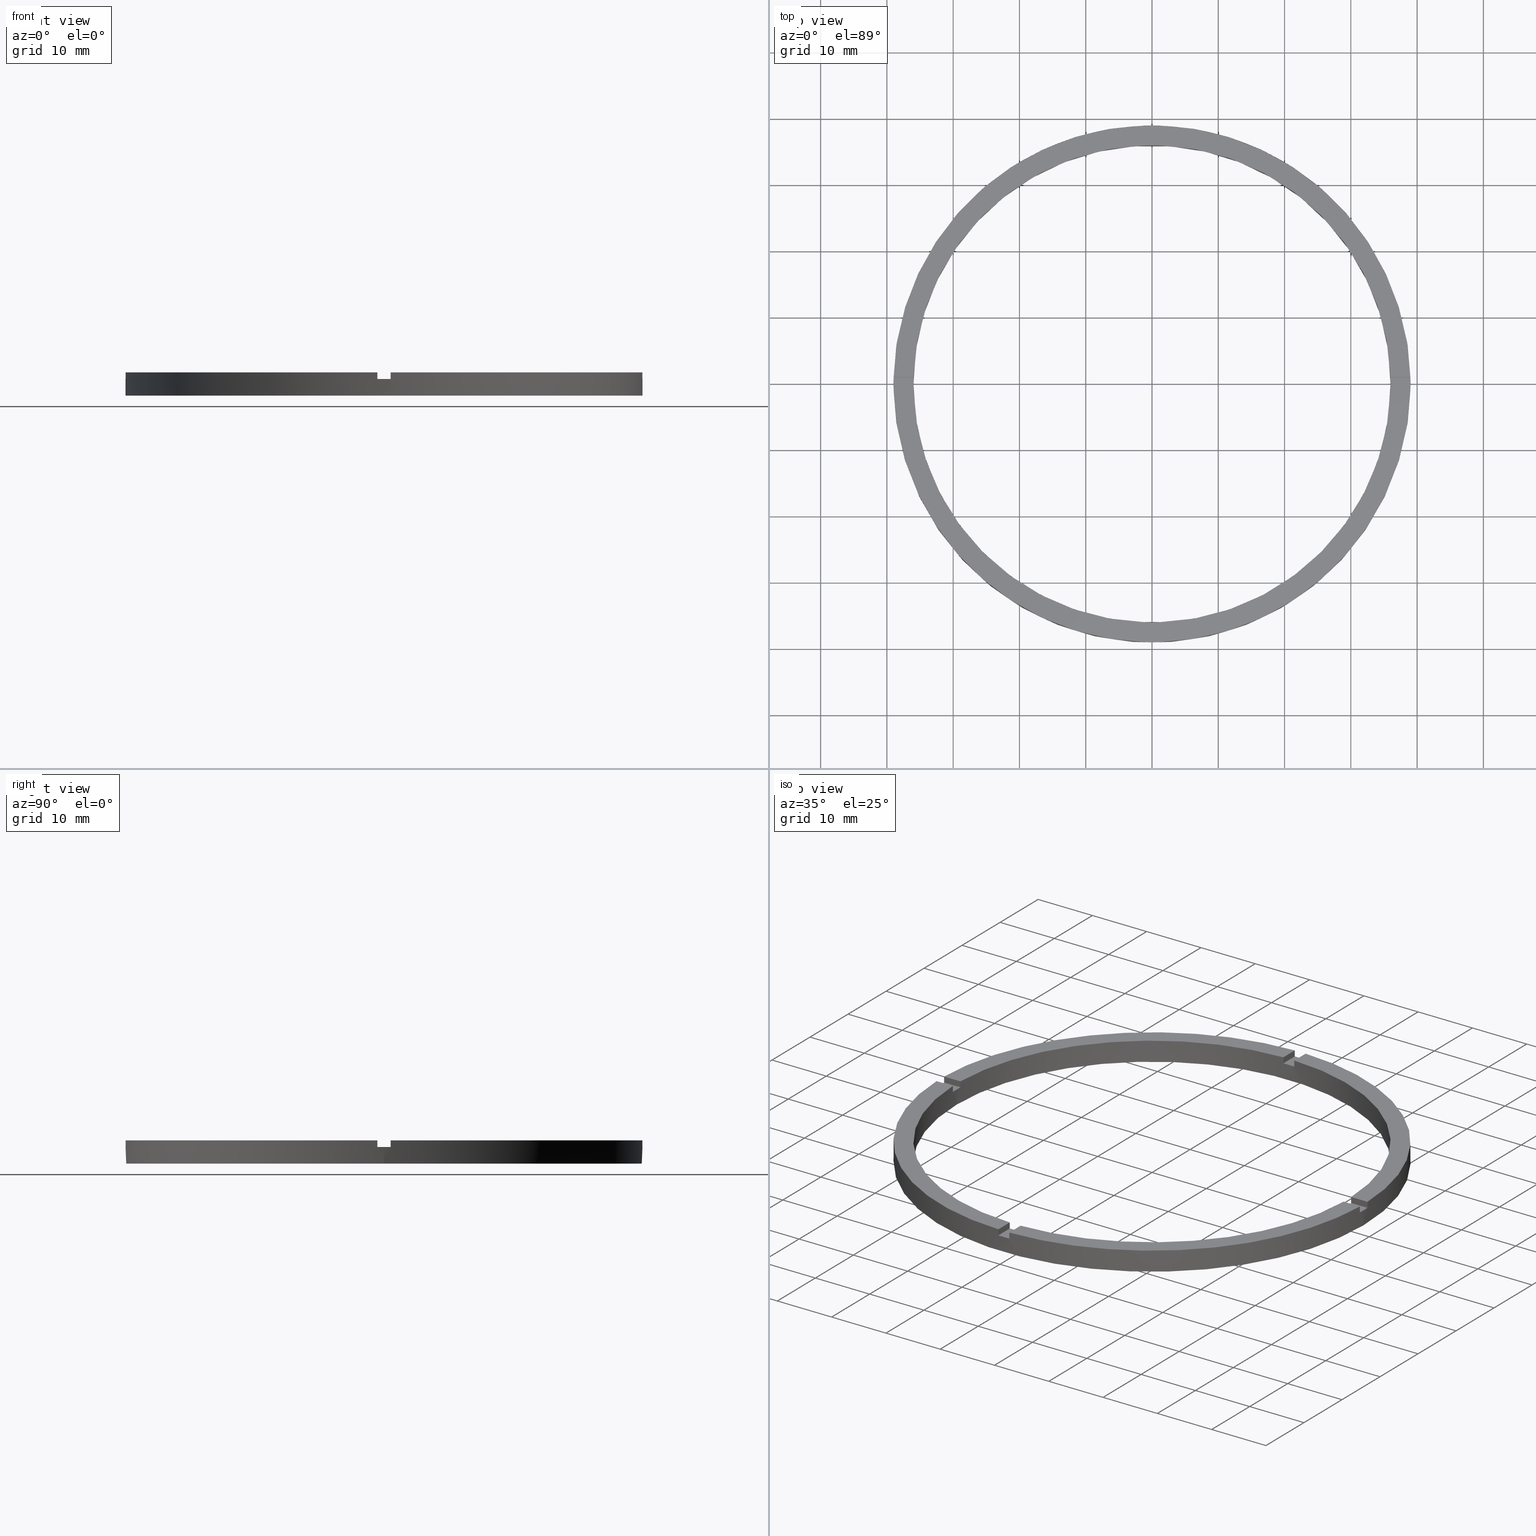
[diagram: canonical four-view strip — front | top / right | iso, engineering-drawing reading convention]
A machine part, canonical four-view strip (front | top / right | iso — engineering-drawing reading convention). The complete STEP part file that produces these views, byte-faithful:
ISO-10303-21;
HEADER;
FILE_DESCRIPTION (( 'STEP AP203' ),
    '1' );
FILE_NAME ('514161.step',
    '2024-12-26T02:43:27',
    ( 'MSI' ),
    ( '' ),
    'SwSTEP 2.0',
    'SolidWorks 2020',
    '' );
FILE_SCHEMA (( 'CONFIG_CONTROL_DESIGN' ));
ENDSEC;

DATA;
#1 = AXIS2_PLACEMENT_3D ( 'NONE', #303, #6, #317 ) ;
#2 = DIRECTION ( 'NONE',  ( 1.000000000000000000, 0.000000000000000000, 0.000000000000000000 ) ) ;
#3 = DIRECTION ( 'NONE',  ( 0.000000000000000000, 0.000000000000000000, 1.000000000000000000 ) ) ;
#4 = CARTESIAN_POINT ( 'NONE',  ( -38.98717737923585247, -1.000000000000027978, 2.500000000000000000 ) ) ;
#5 = CARTESIAN_POINT ( 'NONE',  ( 28.99999999999998934, 0.9999999999998421263, 3.500000000000000000 ) ) ;
#6 = DIRECTION ( 'NONE',  ( -0.000000000000000000, -0.000000000000000000, -1.000000000000000000 ) ) ;
#7 = PLANE ( 'NONE',  #627 ) ;
#8 = DIRECTION ( 'NONE',  ( -1.000000000000000000, -6.505213034913025371E-17, 0.000000000000000000 ) ) ;
#9 = APPLICATION_PROTOCOL_DEFINITION ( 'international standard', 'config_control_design', 1994, #273 ) ;
#10 = CC_DESIGN_DATE_AND_TIME_ASSIGNMENT ( #101, #692, ( #119 ) ) ;
#11 = CIRCLE ( 'NONE', #435, 36.00000000000000000 ) ;
#12 = FACE_OUTER_BOUND ( 'NONE', #763, .T. ) ;
#13 = EDGE_CURVE ( 'NONE', #468, #205, #132, .T. ) ;
#14 = DIRECTION ( 'NONE',  ( -0.000000000000000000, -1.000000000000000000, -0.000000000000000000 ) ) ;
#15 = FACE_OUTER_BOUND ( 'NONE', #746, .T. ) ;
#16 = DIRECTION ( 'NONE',  ( 1.000000000000000000, 0.000000000000000000, 0.000000000000000000 ) ) ;
#17 = AXIS2_PLACEMENT_3D ( 'NONE', #700, #654, #545 ) ;
#18 = CARTESIAN_POINT ( 'NONE',  ( 39.00000000000000000, 4.776122516674677878E-15, 3.500000000000000000 ) ) ;
#19 = CARTESIAN_POINT ( 'NONE',  ( 0.000000000000000000, 0.000000000000000000, 3.500000000000000000 ) ) ;
#20 = ADVANCED_FACE ( 'NONE', ( #669 ), #50, .F. ) ;
#21 = PLANE ( 'NONE',  #434 ) ;
#22 = DIRECTION ( 'NONE',  ( 0.000000000000000000, 0.000000000000000000, 1.000000000000000000 ) ) ;
#23 = PERSON_AND_ORGANIZATION_ROLE ( 'classification_officer' ) ;
#24 = AXIS2_PLACEMENT_3D ( 'NONE', #632, #748, #532 ) ;
#25 = AXIS2_PLACEMENT_3D ( 'NONE', #282, #596, #29 ) ;
#26 = EDGE_CURVE ( 'NONE', #732, #718, #661, .T. ) ;
#27 = VECTOR ( 'NONE', #386, 1000.000000000000000 ) ;
#28 = CARTESIAN_POINT ( 'NONE',  ( -39.00000000000000000, 0.000000000000000000, 2.500000000000000000 ) ) ;
#29 = DIRECTION ( 'NONE',  ( 1.000000000000000000, 0.000000000000000000, 0.000000000000000000 ) ) ;
#30 = FACE_BOUND ( 'NONE', #495, .T. ) ;
#31 = DIRECTION ( 'NONE',  ( -0.000000000000000000, -0.000000000000000000, -1.000000000000000000 ) ) ;
#32 = CARTESIAN_POINT ( 'NONE',  ( 35.98610843089315381, -1.000000000000157430, 3.500000000000000000 ) ) ;
#33 = EDGE_CURVE ( 'NONE', #519, #234, #670, .T. ) ;
#34 = LINE ( 'NONE', #780, #27 ) ;
#35 = CARTESIAN_POINT ( 'NONE',  ( 0.9999999999999746869, 38.98717737923585247, 3.500000000000000000 ) ) ;
#36 = PLANE ( 'NONE',  #761 ) ;
#37 = CARTESIAN_POINT ( 'NONE',  ( 0.9999999999998406830, -38.98717737923585958, 3.500000000000000000 ) ) ;
#38 = CIRCLE ( 'NONE', #147, 39.00000000000000000 ) ;
#39 = DIRECTION ( 'NONE',  ( -0.000000000000000000, 0.000000000000000000, 1.000000000000000000 ) ) ;
#40 = UNCERTAINTY_MEASURE_WITH_UNIT (LENGTH_MEASURE( 1.000000000000000082E-05 ), #331, 'distance_accuracy_value', 'NONE');
#41 = CARTESIAN_POINT ( 'NONE',  ( 0.9999999999998404610, -35.98610843089316091, 2.500000000000000000 ) ) ;
#42 = CARTESIAN_POINT ( 'NONE',  ( -1.000000000000159428, -38.98717737923584536, 2.500000000000000000 ) ) ;
#43 = VECTOR ( 'NONE', #160, 1000.000000000000000 ) ;
#44 = VECTOR ( 'NONE', #3, 1000.000000000000000 ) ;
#45 = MECHANICAL_CONTEXT ( 'NONE', #725, 'mechanical' ) ;
#46 = VECTOR ( 'NONE', #14, 1000.000000000000000 ) ;
#47 = ADVANCED_FACE ( 'NONE', ( #415 ), #655, .F. ) ;
#48 = CARTESIAN_POINT ( 'NONE',  ( 0.9999999999998393507, -29.00000000000017764, 2.500000000000000000 ) ) ;
#49 = CARTESIAN_POINT ( 'NONE',  ( 0.000000000000000000, 0.000000000000000000, 3.500000000000000000 ) ) ;
#50 = PLANE ( 'NONE',  #575 ) ;
#51 = LINE ( 'NONE', #540, #585 ) ;
#52 = VECTOR ( 'NONE', #31, 1000.000000000000000 ) ;
#53 = DIRECTION ( 'NONE',  ( 0.000000000000000000, 0.000000000000000000, 1.000000000000000000 ) ) ;
#54 = AXIS2_PLACEMENT_3D ( 'NONE', #476, #167, #429 ) ;
#55 = FACE_OUTER_BOUND ( 'NONE', #710, .T. ) ;
#56 = FACE_OUTER_BOUND ( 'NONE', #735, .T. ) ;
#57 = LINE ( 'NONE', #18, #363 ) ;
#58 = CIRCLE ( 'NONE', #71, 36.00000000000000000 ) ;
#59 = CARTESIAN_POINT ( 'NONE',  ( 0.000000000000000000, 0.000000000000000000, 0.000000000000000000 ) ) ;
#60 = CARTESIAN_POINT ( 'NONE',  ( -29.00000000000018474, 0.9999999999999740208, 2.500000000000000000 ) ) ;
#61 = CIRCLE ( 'NONE', #534, 39.00000000000000000 ) ;
#62 = VECTOR ( 'NONE', #583, 1000.000000000000000 ) ;
#63 = VECTOR ( 'NONE', #374, 1000.000000000000000 ) ;
#64 = CYLINDRICAL_SURFACE ( 'NONE', #392, 39.00000000000000000 ) ;
#65 = CIRCLE ( 'NONE', #653, 39.00000000000000000 ) ;
#66 = CARTESIAN_POINT ( 'NONE',  ( 35.98610843089316091, 0.9999999999998425704, 2.500000000000000000 ) ) ;
#67 = FACE_OUTER_BOUND ( 'NONE', #496, .T. ) ;
#68 = DIRECTION ( 'NONE',  ( -1.951563910473907735E-16, 1.000000000000000000, 0.000000000000000000 ) ) ;
#69 = LINE ( 'NONE', #595, #85 ) ;
#70 = LINE ( 'NONE', #37, #599 ) ;
#71 = AXIS2_PLACEMENT_3D ( 'NONE', #158, #461, #400 ) ;
#72 = DIRECTION ( 'NONE',  ( 0.000000000000000000, 0.000000000000000000, 1.000000000000000000 ) ) ;
#73 = PRODUCT_DEFINITION_SHAPE ( 'NONE', 'NONE',  #119 ) ;
#74 = ADVANCED_FACE ( 'NONE', ( #137 ), #7, .F. ) ;
#75 = VECTOR ( 'NONE', #668, 1000.000000000000000 ) ;
#76 = CALENDAR_DATE ( 2024, 26, 12 ) ;
#77 = CIRCLE ( 'NONE', #367, 39.00000000000000000 ) ;
#78 = VECTOR ( 'NONE', #322, 1000.000000000000000 ) ;
#79 = CARTESIAN_POINT ( 'NONE',  ( -39.00000000000000000, 0.000000000000000000, 3.500000000000000000 ) ) ;
#80 = AXIS2_PLACEMENT_3D ( 'NONE', #626, #675, #270 ) ;
#81 = VECTOR ( 'NONE', #431, 1000.000000000000000 ) ;
#82 = EDGE_CURVE ( 'NONE', #749, #231, #412, .T. ) ;
#83 = LINE ( 'NONE', #709, #62 ) ;
#84 = PERSON_AND_ORGANIZATION ( #189, #621 ) ;
#85 = VECTOR ( 'NONE', #770, 1000.000000000000000 ) ;
#86 = LINE ( 'NONE', #611, #335 ) ;
#87 = VECTOR ( 'NONE', #549, 1000.000000000000000 ) ;
#88 = PERSON_AND_ORGANIZATION ( #189, #621 ) ;
#89 = LINE ( 'NONE', #472, #97 ) ;
#90 = PERSON_AND_ORGANIZATION ( #189, #621 ) ;
#91 = PLANE ( 'NONE',  #296 ) ;
#92 = VECTOR ( 'NONE', #383, 1000.000000000000000 ) ;
#93 = COORDINATED_UNIVERSAL_TIME_OFFSET ( 8, 0, .AHEAD. ) ;
#94 = APPROVAL ( #108, 'δָ��' ) ;
#95 = LINE ( 'NONE', #172, #92 ) ;
#96 = LINE ( 'NONE', #257, #81 ) ;
#97 = VECTOR ( 'NONE', #650, 1000.000000000000000 ) ;
#98 = DIRECTION ( 'NONE',  ( 0.000000000000000000, 0.000000000000000000, 1.000000000000000000 ) ) ;
#99 = EDGE_CURVE ( 'NONE', #507, #241, #141, .T. ) ;
#100 = ADVANCED_FACE ( 'NONE', ( #155 ), #297, .T. ) ;
#101 = DATE_AND_TIME ( #623, #618 ) ;
#102 = DIRECTION ( 'NONE',  ( 0.000000000000000000, 0.000000000000000000, 1.000000000000000000 ) ) ;
#103 = CALENDAR_DATE ( 2024, 26, 12 ) ;
#104 = CARTESIAN_POINT ( 'NONE',  ( 0.000000000000000000, 0.000000000000000000, 2.500000000000000000 ) ) ;
#105 = DIRECTION ( 'NONE',  ( 1.000000000000000000, 0.000000000000000000, 0.000000000000000000 ) ) ;
#106 = ORIENTED_EDGE ( 'NONE', *, *, #687, .F. ) ;
#107 = DIRECTION ( 'NONE',  ( 1.000000000000000000, 0.000000000000000000, 0.000000000000000000 ) ) ;
#108 = APPROVAL_STATUS ( 'not_yet_approved' ) ;
#109 = EDGE_LOOP ( 'NONE', ( #170, #390, #522, #648 ) ) ;
#110 = DIRECTION ( 'NONE',  ( 0.000000000000000000, 0.000000000000000000, 1.000000000000000000 ) ) ;
#111 = AXIS2_PLACEMENT_3D ( 'NONE', #601, #783, #411 ) ;
#112 = CARTESIAN_POINT ( 'NONE',  ( -1.000000000000025313, 38.98717737923585247, 2.500000000000000000 ) ) ;
#113 = ORIENTED_EDGE ( 'NONE', *, *, #251, .T. ) ;
#114 = CIRCLE ( 'NONE', #24, 39.00000000000000000 ) ;
#115 = AXIS2_PLACEMENT_3D ( 'NONE', #192, #625, #436 ) ;
#116 = VERTEX_POINT ( 'NONE', #550 ) ;
#117 = DIRECTION ( 'NONE',  ( 0.000000000000000000, 0.000000000000000000, 1.000000000000000000 ) ) ;
#118 = EDGE_LOOP ( 'NONE', ( #744, #173, #647, #652 ) ) ;
#119 = PRODUCT_DEFINITION ( 'δ֪', '', #455, #321 ) ;
#120 = EDGE_LOOP ( 'NONE', ( #402, #150, #232, #135 ) ) ;
#121 = DIRECTION ( 'NONE',  ( -1.301042606982605074E-16, 1.000000000000000000, -0.000000000000000000 ) ) ;
#122 = EDGE_CURVE ( 'NONE', #644, #485, #163, .T. ) ;
#123 = DIRECTION ( 'NONE',  ( 1.000000000000000000, 0.000000000000000000, -0.000000000000000000 ) ) ;
#124 = ORIENTED_EDGE ( 'NONE', *, *, #251, .F. ) ;
#125 = CARTESIAN_POINT ( 'NONE',  ( 0.9999999999999746869, 35.98610843089316091, 3.500000000000000000 ) ) ;
#126 = EDGE_CURVE ( 'NONE', #519, #705, #159, .T. ) ;
#127 = DIRECTION ( 'NONE',  ( 0.000000000000000000, 0.000000000000000000, 1.000000000000000000 ) ) ;
#128 = CARTESIAN_POINT ( 'NONE',  ( -1.000000000000025313, 28.99999999999999645, 2.500000000000000000 ) ) ;
#129 = CARTESIAN_POINT ( 'NONE',  ( 36.00000000000000000, 4.408728476930470856E-15, 0.000000000000000000 ) ) ;
#130 = CC_DESIGN_APPROVAL ( #302, ( #119 ) ) ;
#131 = CARTESIAN_POINT ( 'NONE',  ( 28.99999999999998934, -1.000000000000157874, 2.500000000000000000 ) ) ;
#132 = LINE ( 'NONE', #729, #418 ) ;
#133 = EDGE_CURVE ( 'NONE', #773, #403, #427, .T. ) ;
#134 = EDGE_CURVE ( 'NONE', #466, #469, #677, .T. ) ;
#135 = ORIENTED_EDGE ( 'NONE', *, *, #513, .T. ) ;
#136 = EDGE_LOOP ( 'NONE', ( #754, #199, #228, #502 ) ) ;
#137 = FACE_OUTER_BOUND ( 'NONE', #733, .T. ) ;
#138 = PERSON_AND_ORGANIZATION_ROLE ( 'design_owner' ) ;
#139 = VECTOR ( 'NONE', #213, 1000.000000000000000 ) ;
#140 = CARTESIAN_POINT ( 'NONE',  ( 28.99999999999998934, -1.000000000000157874, 3.500000000000000000 ) ) ;
#141 = CIRCLE ( 'NONE', #25, 39.00000000000000000 ) ;
#142 = DIRECTION ( 'NONE',  ( 1.000000000000000000, 0.000000000000000000, 0.000000000000000000 ) ) ;
#143 = CARTESIAN_POINT ( 'NONE',  ( -1.000000000000159650, -35.98610843089315381, 2.500000000000000000 ) ) ;
#144 = CARTESIAN_POINT ( 'NONE',  ( 0.000000000000000000, 0.000000000000000000, 2.500000000000000000 ) ) ;
#145 = CC_DESIGN_APPROVAL ( #94, ( #204 ) ) ;
#146 = ORIENTED_EDGE ( 'NONE', *, *, #734, .T. ) ;
#147 = AXIS2_PLACEMENT_3D ( 'NONE', #441, #404, #142 ) ;
#148 = DIRECTION ( 'NONE',  ( 0.000000000000000000, 0.000000000000000000, -1.000000000000000000 ) ) ;
#149 = EDGE_CURVE ( 'NONE', #633, #250, #83, .T. ) ;
#150 = ORIENTED_EDGE ( 'NONE', *, *, #359, .T. ) ;
#151 = ADVANCED_FACE ( 'NONE', ( #67 ), #641, .T. ) ;
#152 =( NAMED_UNIT ( * ) PLANE_ANGLE_UNIT ( ) SI_UNIT ( $, .RADIAN. ) );
#153 = VECTOR ( 'NONE', #207, 1000.000000000000000 ) ;
#154 = DIRECTION ( 'NONE',  ( 0.000000000000000000, 0.000000000000000000, 1.000000000000000000 ) ) ;
#155 = FACE_OUTER_BOUND ( 'NONE', #634, .T. ) ;
#156 = ADVANCED_FACE ( 'NONE', ( #340 ), #64, .T. ) ;
#157 = DIRECTION ( 'NONE',  ( 0.000000000000000000, -0.000000000000000000, 1.000000000000000000 ) ) ;
#158 = CARTESIAN_POINT ( 'NONE',  ( 0.000000000000000000, 0.000000000000000000, 3.500000000000000000 ) ) ;
#159 = LINE ( 'NONE', #488, #153 ) ;
#160 = DIRECTION ( 'NONE',  ( 0.000000000000000000, 0.000000000000000000, 1.000000000000000000 ) ) ;
#161 = PERSON_AND_ORGANIZATION_ROLE ( 'creator' ) ;
#162 = CC_DESIGN_PERSON_AND_ORGANIZATION_ASSIGNMENT ( #174, #544, ( #455 ) ) ;
#163 = CIRCLE ( 'NONE', #688, 36.00000000000000000 ) ;
#164 = EDGE_CURVE ( 'NONE', #768, #485, #342, .T. ) ;
#165 = CARTESIAN_POINT ( 'NONE',  ( -1.000000000000025313, 38.98717737923585247, 3.500000000000000000 ) ) ;
#166 = AXIS2_PLACEMENT_3D ( 'NONE', #613, #127, #512 ) ;
#167 = DIRECTION ( 'NONE',  ( 0.000000000000000000, 0.000000000000000000, 1.000000000000000000 ) ) ;
#168 = DIRECTION ( 'NONE',  ( 0.000000000000000000, 0.000000000000000000, 1.000000000000000000 ) ) ;
#169 = COORDINATED_UNIVERSAL_TIME_OFFSET ( 8, 0, .AHEAD. ) ;
#170 = ORIENTED_EDGE ( 'NONE', *, *, #134, .F. ) ;
#171 = PERSON_AND_ORGANIZATION ( #189, #621 ) ;
#172 = CARTESIAN_POINT ( 'NONE',  ( -29.00000000000018474, -1.000000000000025979, 3.500000000000000000 ) ) ;
#173 = ORIENTED_EDGE ( 'NONE', *, *, #126, .T. ) ;
#174 = PERSON_AND_ORGANIZATION ( #189, #621 ) ;
#175 = CARTESIAN_POINT ( 'NONE',  ( 38.98717737923584536, -1.000000000000157208, 3.500000000000000000 ) ) ;
#176 = VERTEX_POINT ( 'NONE', #406 ) ;
#177 = LOCAL_TIME ( 10, 43, 27.00000000000000000, #447 ) ;
#178 = AXIS2_PLACEMENT_3D ( 'NONE', #755, #397, #16 ) ;
#179 = EDGE_CURVE ( 'NONE', #214, #533, #350, .T. ) ;
#180 = ORIENTED_EDGE ( 'NONE', *, *, #635, .T. ) ;
#181 = APPROVAL_DATE_TIME ( #699, #509 ) ;
#182 = ORIENTED_EDGE ( 'NONE', *, *, #445, .F. ) ;
#183 = PERSON_AND_ORGANIZATION ( #189, #621 ) ;
#184 = DIRECTION ( 'NONE',  ( 0.000000000000000000, 0.000000000000000000, 1.000000000000000000 ) ) ;
#185 = CARTESIAN_POINT ( 'NONE',  ( 0.000000000000000000, 0.000000000000000000, 2.500000000000000000 ) ) ;
#186 = ORIENTED_EDGE ( 'NONE', *, *, #122, .T. ) ;
#187 = CLOSED_SHELL ( 'NONE', ( #47, #407, #100, #645, #395, #470, #324, #156, #271, #285, #74, #281, #751, #685, #681, #438, #20, #151, #343, #730, #630 ) ) ;
#188 = ORIENTED_EDGE ( 'NONE', *, *, #237, .F. ) ;
#189 = PERSON ( 'δָ��', 'δָ��', 'δָ��', ('δָ��'), ('δָ��'), ('δָ��') ) ;
#190 = AXIS2_PLACEMENT_3D ( 'NONE', #300, #529, #105 ) ;
#191 = ORIENTED_EDGE ( 'NONE', *, *, #306, .T. ) ;
#192 = CARTESIAN_POINT ( 'NONE',  ( 0.000000000000000000, 0.000000000000000000, 3.500000000000000000 ) ) ;
#193 = DIRECTION ( 'NONE',  ( -1.000000000000000000, -6.505213034913025371E-17, -0.000000000000000000 ) ) ;
#194 = ORIENTED_EDGE ( 'NONE', *, *, #445, .T. ) ;
#195 = ORIENTED_EDGE ( 'NONE', *, *, #660, .T. ) ;
#196 = EDGE_CURVE ( 'NONE', #474, #736, #70, .T. ) ;
#197 = ORIENTED_EDGE ( 'NONE', *, *, #338, .F. ) ;
#198 = PLANE ( 'NONE',  #413 ) ;
#199 = ORIENTED_EDGE ( 'NONE', *, *, #660, .F. ) ;
#200 = ADVANCED_BREP_SHAPE_REPRESENTATION ( '514161', ( #543, #769 ), #716 ) ;
#201 = ORIENTED_EDGE ( 'NONE', *, *, #99, .T. ) ;
#202 = CARTESIAN_POINT ( 'NONE',  ( -35.98610843089316091, 0.9999999999999726885, 3.500000000000000000 ) ) ;
#203 = ORIENTED_EDGE ( 'NONE', *, *, #328, .T. ) ;
#204 = SECURITY_CLASSIFICATION ( '', '', #576 ) ;
#205 = VERTEX_POINT ( 'NONE', #125 ) ;
#206 = ORIENTED_EDGE ( 'NONE', *, *, #417, .F. ) ;
#207 = DIRECTION ( 'NONE',  ( -0.000000000000000000, -0.000000000000000000, -1.000000000000000000 ) ) ;
#208 = ORIENTED_EDGE ( 'NONE', *, *, #13, .F. ) ;
#209 = ORIENTED_EDGE ( 'NONE', *, *, #721, .F. ) ;
#210 = VERTEX_POINT ( 'NONE', #129 ) ;
#211 = CARTESIAN_POINT ( 'NONE',  ( -1.000000000000160760, -29.00000000000017764, 2.500000000000000000 ) ) ;
#212 = ORIENTED_EDGE ( 'NONE', *, *, #196, .T. ) ;
#213 = DIRECTION ( 'NONE',  ( 1.000000000000000000, 6.505213034913025371E-17, 0.000000000000000000 ) ) ;
#214 = VERTEX_POINT ( 'NONE', #604 ) ;
#215 = ORIENTED_EDGE ( 'NONE', *, *, #426, .T. ) ;
#216 = AXIS2_PLACEMENT_3D ( 'NONE', #419, #548, #779 ) ;
#217 = ORIENTED_EDGE ( 'NONE', *, *, #339, .F. ) ;
#218 = ORIENTED_EDGE ( 'NONE', *, *, #590, .F. ) ;
#219 = ORIENTED_EDGE ( 'NONE', *, *, #164, .T. ) ;
#220 = ORIENTED_EDGE ( 'NONE', *, *, #682, .T. ) ;
#221 =( NAMED_UNIT ( * ) SI_UNIT ( $, .STERADIAN. ) SOLID_ANGLE_UNIT ( ) );
#222 = ORIENTED_EDGE ( 'NONE', *, *, #628, .T. ) ;
#223 = ORIENTED_EDGE ( 'NONE', *, *, #328, .F. ) ;
#224 = DIRECTION ( 'NONE',  ( 1.000000000000000000, 0.000000000000000000, 0.000000000000000000 ) ) ;
#225 = VERTEX_POINT ( 'NONE', #42 ) ;
#226 = PRODUCT ( '514161', '514161', '', ( #45 ) ) ;
#227 = VERTEX_POINT ( 'NONE', #377 ) ;
#228 = ORIENTED_EDGE ( 'NONE', *, *, #662, .F. ) ;
#229 = ORIENTED_EDGE ( 'NONE', *, *, #276, .F. ) ;
#230 = DIRECTION ( 'NONE',  ( 1.000000000000000000, 0.000000000000000000, -0.000000000000000000 ) ) ;
#231 = VERTEX_POINT ( 'NONE', #175 ) ;
#232 = ORIENTED_EDGE ( 'NONE', *, *, #459, .F. ) ;
#233 = VERTEX_POINT ( 'NONE', #264 ) ;
#234 = VERTEX_POINT ( 'NONE', #387 ) ;
#235 = CARTESIAN_POINT ( 'NONE',  ( -35.98610843089315381, -1.000000000000027311, 2.500000000000000000 ) ) ;
#236 = AXIS2_PLACEMENT_3D ( 'NONE', #567, #498, #430 ) ;
#237 = EDGE_CURVE ( 'NONE', #241, #485, #603, .T. ) ;
#238 = ORIENTED_EDGE ( 'NONE', *, *, #459, .T. ) ;
#239 = VERTEX_POINT ( 'NONE', #674 ) ;
#240 = CARTESIAN_POINT ( 'NONE',  ( 35.98610843089316091, 0.9999999999998425704, 3.500000000000000000 ) ) ;
#241 = VERTEX_POINT ( 'NONE', #4 ) ;
#242 = CARTESIAN_POINT ( 'NONE',  ( 0.9999999999998406830, -38.98717737923585958, 3.500000000000000000 ) ) ;
#243 = EDGE_LOOP ( 'NONE', ( #486, #649, #523, #106, #712, #765, #209, #399, #453, #256, #521, #146 ) ) ;
#244 = DIRECTION ( 'NONE',  ( 1.000000000000000000, 0.000000000000000000, -0.000000000000000000 ) ) ;
#245 = EDGE_LOOP ( 'NONE', ( #218, #527, #378, #215 ) ) ;
#246 = EDGE_CURVE ( 'NONE', #225, #528, #347, .T. ) ;
#247 = ORIENTED_EDGE ( 'NONE', *, *, #667, .F. ) ;
#248 = CARTESIAN_POINT ( 'NONE',  ( -36.00000000000000000, 0.000000000000000000, 0.000000000000000000 ) ) ;
#249 = EDGE_CURVE ( 'NONE', #254, #210, #606, .T. ) ;
#250 = VERTEX_POINT ( 'NONE', #66 ) ;
#251 = EDGE_CURVE ( 'NONE', #460, #701, #86, .T. ) ;
#252 = CARTESIAN_POINT ( 'NONE',  ( 0.9999999999999746869, 38.98717737923585247, 3.500000000000000000 ) ) ;
#253 = VERTEX_POINT ( 'NONE', #165 ) ;
#254 = VERTEX_POINT ( 'NONE', #248 ) ;
#255 = EDGE_LOOP ( 'NONE', ( #531, #191, #473, #767, #186, #493, #195, #124, #711, #525, #503, #631 ) ) ;
#256 = ORIENTED_EDGE ( 'NONE', *, *, #497, .T. ) ;
#257 = CARTESIAN_POINT ( 'NONE',  ( 0.9999999999999746869, 28.99999999999999645, 3.500000000000000000 ) ) ;
#258 = CARTESIAN_POINT ( 'NONE',  ( -29.00000000000018474, -1.000000000000025979, 2.500000000000000000 ) ) ;
#259 = ORIENTED_EDGE ( 'NONE', *, *, #573, .F. ) ;
#260 = CARTESIAN_POINT ( 'NONE',  ( -1.000000000000025313, 35.98610843089315381, 2.500000000000000000 ) ) ;
#261 = EDGE_LOOP ( 'NONE', ( #482, #182, #382, #727, #212, #458, #516, #757, #514, #449, #766, #719 ) ) ;
#262 = DIRECTION ( 'NONE',  ( 0.000000000000000000, 0.000000000000000000, 1.000000000000000000 ) ) ;
#263 = DIRECTION ( 'NONE',  ( 0.000000000000000000, 0.000000000000000000, 1.000000000000000000 ) ) ;
#264 = CARTESIAN_POINT ( 'NONE',  ( -38.98717737923585247, 0.9999999999999720224, 3.500000000000000000 ) ) ;
#265 = AXIS2_PLACEMENT_3D ( 'NONE', #292, #298, #657 ) ;
#266 = DIRECTION ( 'NONE',  ( -1.301042606982605074E-16, 1.000000000000000000, -0.000000000000000000 ) ) ;
#267 = DIRECTION ( 'NONE',  ( 6.505213034913025371E-17, -1.000000000000000000, 0.000000000000000000 ) ) ;
#268 = CARTESIAN_POINT ( 'NONE',  ( -1.000000000000025313, 38.98717737923585247, 3.500000000000000000 ) ) ;
#269 = CARTESIAN_POINT ( 'NONE',  ( 0.000000000000000000, 0.000000000000000000, 3.500000000000000000 ) ) ;
#270 = DIRECTION ( 'NONE',  ( -1.000000000000000000, 0.000000000000000000, 0.000000000000000000 ) ) ;
#271 = ADVANCED_FACE ( 'NONE', ( #593 ), #594, .F. ) ;
#272 = AXIS2_PLACEMENT_3D ( 'NONE', #629, #678, #556 ) ;
#273 = APPLICATION_CONTEXT ( 'configuration controlled 3d designs of mechanical parts and assemblies' ) ;
#274 = CARTESIAN_POINT ( 'NONE',  ( -29.00000000000018474, -1.000000000000025979, 2.500000000000000000 ) ) ;
#275 = DIRECTION ( 'NONE',  ( 0.000000000000000000, 0.000000000000000000, 1.000000000000000000 ) ) ;
#276 = EDGE_CURVE ( 'NONE', #718, #250, #287, .T. ) ;
#277 = EDGE_CURVE ( 'NONE', #773, #749, #11, .T. ) ;
#278 = DIRECTION ( 'NONE',  ( -0.000000000000000000, -0.000000000000000000, -1.000000000000000000 ) ) ;
#279 = CC_DESIGN_DATE_AND_TIME_ASSIGNMENT ( #450, #776, ( #204 ) ) ;
#280 = CARTESIAN_POINT ( 'NONE',  ( -39.00000000000000000, 0.000000000000000000, 0.000000000000000000 ) ) ;
#281 = ADVANCED_FACE ( 'NONE', ( #12 ), #518, .T. ) ;
#282 = CARTESIAN_POINT ( 'NONE',  ( 0.000000000000000000, 0.000000000000000000, 2.500000000000000000 ) ) ;
#283 = DIRECTION ( 'NONE',  ( -1.000000000000000000, -1.301042606982605074E-16, 0.000000000000000000 ) ) ;
#284 = DIRECTION ( 'NONE',  ( -1.000000000000000000, 0.000000000000000000, 0.000000000000000000 ) ) ;
#285 = ADVANCED_FACE ( 'NONE', ( #15 ), #745, .F. ) ;
#286 = CARTESIAN_POINT ( 'NONE',  ( 38.98717737923585958, 0.9999999999998427924, 2.500000000000000000 ) ) ;
#287 = LINE ( 'NONE', #240, #552 ) ;
#288 = CARTESIAN_POINT ( 'NONE',  ( 0.9999999999999746869, 28.99999999999999645, 2.500000000000000000 ) ) ;
#289 = APPROVAL_STATUS ( 'not_yet_approved' ) ;
#290 = DIRECTION ( 'NONE',  ( 0.000000000000000000, 0.000000000000000000, 1.000000000000000000 ) ) ;
#291 = AXIS2_PLACEMENT_3D ( 'NONE', #665, #263, #715 ) ;
#292 = CARTESIAN_POINT ( 'NONE',  ( 0.000000000000000000, 0.000000000000000000, 2.500000000000000000 ) ) ;
#293 = DIRECTION ( 'NONE',  ( 0.000000000000000000, 0.000000000000000000, 1.000000000000000000 ) ) ;
#294 = PLANE ( 'NONE',  #54 ) ;
#295 = CARTESIAN_POINT ( 'NONE',  ( -38.98717737923585247, -1.000000000000027978, 3.500000000000000000 ) ) ;
#296 = AXIS2_PLACEMENT_3D ( 'NONE', #690, #467, #148 ) ;
#297 = PLANE ( 'NONE',  #480 ) ;
#298 = DIRECTION ( 'NONE',  ( 0.000000000000000000, 0.000000000000000000, 1.000000000000000000 ) ) ;
#299 = EDGE_CURVE ( 'NONE', #644, #254, #561, .T. ) ;
#300 = CARTESIAN_POINT ( 'NONE',  ( 0.000000000000000000, 0.000000000000000000, 3.500000000000000000 ) ) ;
#301 = DIRECTION ( 'NONE',  ( 1.000000000000000000, 0.000000000000000000, -0.000000000000000000 ) ) ;
#302 = APPROVAL ( #320, 'δָ��' ) ;
#303 = CARTESIAN_POINT ( 'NONE',  ( 0.000000000000000000, 0.000000000000000000, 3.500000000000000000 ) ) ;
#304 = CIRCLE ( 'NONE', #291, 39.00000000000000000 ) ;
#305 = DIRECTION ( 'NONE',  ( 1.000000000000000000, 0.000000000000000000, 0.000000000000000000 ) ) ;
#306 = EDGE_CURVE ( 'NONE', #176, #210, #587, .T. ) ;
#307 = LINE ( 'NONE', #295, #327 ) ;
#308 = AXIS2_PLACEMENT_3D ( 'NONE', #185, #39, #2 ) ;
#309 = VECTOR ( 'NONE', #588, 1000.000000000000000 ) ;
#310 = DIRECTION ( 'NONE',  ( 0.000000000000000000, 0.000000000000000000, 1.000000000000000000 ) ) ;
#311 = LINE ( 'NONE', #684, #570 ) ;
#312 = VECTOR ( 'NONE', #437, 1000.000000000000000 ) ;
#313 = APPLICATION_PROTOCOL_DEFINITION ( 'international standard', 'config_control_design', 1994, #725 ) ;
#314 = CYLINDRICAL_SURFACE ( 'NONE', #1, 39.00000000000000000 ) ;
#315 = CARTESIAN_POINT ( 'NONE',  ( 0.000000000000000000, 0.000000000000000000, 2.500000000000000000 ) ) ;
#316 = FACE_OUTER_BOUND ( 'NONE', #243, .T. ) ;
#317 = DIRECTION ( 'NONE',  ( -1.000000000000000000, 0.000000000000000000, 0.000000000000000000 ) ) ;
#318 = LINE ( 'NONE', #268, #312 ) ;
#319 = PRODUCT_RELATED_PRODUCT_CATEGORY ( 'detail', '', ( #226 ) ) ;
#320 = APPROVAL_STATUS ( 'not_yet_approved' ) ;
#321 = DESIGN_CONTEXT ( 'detailed design', #273, 'design' ) ;
#322 = DIRECTION ( 'NONE',  ( -0.000000000000000000, -0.000000000000000000, -1.000000000000000000 ) ) ;
#323 = LINE ( 'NONE', #376, #44 ) ;
#324 = ADVANCED_FACE ( 'NONE', ( #566, #30 ), #370, .F. ) ;
#325 = AXIS2_PLACEMENT_3D ( 'NONE', #59, #401, #564 ) ;
#326 = VECTOR ( 'NONE', #405, 1000.000000000000000 ) ;
#327 = VECTOR ( 'NONE', #373, 1000.000000000000000 ) ;
#328 = EDGE_CURVE ( 'NONE', #736, #403, #330, .T. ) ;
#329 = CIRCLE ( 'NONE', #190, 39.00000000000000000 ) ;
#330 = LINE ( 'NONE', #48, #581 ) ;
#331 =( LENGTH_UNIT ( ) NAMED_UNIT ( * ) SI_UNIT ( .MILLI., .METRE. ) );
#332 = VECTOR ( 'NONE', #275, 1000.000000000000000 ) ;
#333 = DIRECTION ( 'NONE',  ( -0.000000000000000000, -0.000000000000000000, -1.000000000000000000 ) ) ;
#334 = FACE_OUTER_BOUND ( 'NONE', #772, .T. ) ;
#335 = VECTOR ( 'NONE', #293, 1000.000000000000000 ) ;
#336 = CARTESIAN_POINT ( 'NONE',  ( -35.98610843089315381, -1.000000000000027311, 3.500000000000000000 ) ) ;
#337 = VECTOR ( 'NONE', #659, 1000.000000000000000 ) ;
#338 = EDGE_CURVE ( 'NONE', #460, #225, #311, .T. ) ;
#339 = EDGE_CURVE ( 'NONE', #759, #233, #323, .T. ) ;
#340 = FACE_OUTER_BOUND ( 'NONE', #261, .T. ) ;
#341 = LINE ( 'NONE', #252, #43 ) ;
#342 = LINE ( 'NONE', #656, #78 ) ;
#343 = ADVANCED_FACE ( 'NONE', ( #568 ), #560, .F. ) ;
#344 = DIRECTION ( 'NONE',  ( 0.000000000000000000, 0.000000000000000000, 1.000000000000000000 ) ) ;
#345 = APPROVAL_ROLE ( '' ) ;
#346 = CIRCLE ( 'NONE', #265, 36.00000000000000000 ) ;
#347 = LINE ( 'NONE', #362, #352 ) ;
#348 = DATE_AND_TIME ( #76, #607 ) ;
#349 = CIRCLE ( 'NONE', #671, 36.00000000000000000 ) ;
#350 = CIRCLE ( 'NONE', #500, 39.00000000000000000 ) ;
#351 = CC_DESIGN_PERSON_AND_ORGANIZATION_ASSIGNMENT ( #183, #651, ( #455 ) ) ;
#352 = VECTOR ( 'NONE', #110, 1000.000000000000000 ) ;
#353 = COORDINATED_UNIVERSAL_TIME_OFFSET ( 8, 0, .AHEAD. ) ;
#354 = CARTESIAN_POINT ( 'NONE',  ( 0.000000000000000000, 0.000000000000000000, 2.500000000000000000 ) ) ;
#355 = CIRCLE ( 'NONE', #178, 36.00000000000000000 ) ;
#356 = VECTOR ( 'NONE', #364, 1000.000000000000000 ) ;
#357 = CARTESIAN_POINT ( 'NONE',  ( 0.000000000000000000, 0.000000000000000000, 2.500000000000000000 ) ) ;
#358 = APPROVAL_DATE_TIME ( #348, #302 ) ;
#359 = EDGE_CURVE ( 'NONE', #533, #705, #34, .T. ) ;
#360 = FACE_OUTER_BOUND ( 'NONE', #245, .T. ) ;
#361 = CIRCLE ( 'NONE', #216, 39.00000000000000000 ) ;
#362 = CARTESIAN_POINT ( 'NONE',  ( -1.000000000000159428, -38.98717737923584536, 3.500000000000000000 ) ) ;
#363 = VECTOR ( 'NONE', #409, 1000.000000000000000 ) ;
#364 = DIRECTION ( 'NONE',  ( 0.000000000000000000, 0.000000000000000000, 1.000000000000000000 ) ) ;
#365 = CIRCLE ( 'NONE', #308, 36.00000000000000000 ) ;
#366 = VECTOR ( 'NONE', #121, 1000.000000000000000 ) ;
#367 = AXIS2_PLACEMENT_3D ( 'NONE', #713, #168, #107 ) ;
#368 = CIRCLE ( 'NONE', #17, 36.00000000000000000 ) ;
#369 = COORDINATED_UNIVERSAL_TIME_OFFSET ( 8, 0, .AHEAD. ) ;
#370 = PLANE ( 'NONE',  #569 ) ;
#371 = PERSON_AND_ORGANIZATION ( #189, #621 ) ;
#372 = CARTESIAN_POINT ( 'NONE',  ( 38.98717737923584536, -1.000000000000157208, 3.500000000000000000 ) ) ;
#373 = DIRECTION ( 'NONE',  ( -0.000000000000000000, -0.000000000000000000, -1.000000000000000000 ) ) ;
#374 = DIRECTION ( 'NONE',  ( 0.000000000000000000, 1.000000000000000000, 0.000000000000000000 ) ) ;
#375 = ORIENTED_EDGE ( 'NONE', *, *, #577, .T. ) ;
#376 = CARTESIAN_POINT ( 'NONE',  ( -38.98717737923585247, 0.9999999999999720224, 3.500000000000000000 ) ) ;
#377 = CARTESIAN_POINT ( 'NONE',  ( -38.98717737923585247, -1.000000000000027978, 3.500000000000000000 ) ) ;
#378 = ORIENTED_EDGE ( 'NONE', *, *, #26, .F. ) ;
#379 = DIRECTION ( 'NONE',  ( -0.000000000000000000, -0.000000000000000000, -1.000000000000000000 ) ) ;
#380 = ORIENTED_EDGE ( 'NONE', *, *, #555, .T. ) ;
#381 = AXIS2_PLACEMENT_3D ( 'NONE', #524, #562, #747 ) ;
#382 = ORIENTED_EDGE ( 'NONE', *, *, #539, .T. ) ;
#383 = DIRECTION ( 'NONE',  ( 1.000000000000000000, 1.951563910473907735E-16, -0.000000000000000000 ) ) ;
#384 = EDGE_CURVE ( 'NONE', #227, #241, #307, .T. ) ;
#385 = ORIENTED_EDGE ( 'NONE', *, *, #149, .T. ) ;
#386 = DIRECTION ( 'NONE',  ( -0.000000000000000000, -1.000000000000000000, -0.000000000000000000 ) ) ;
#387 = CARTESIAN_POINT ( 'NONE',  ( -35.98610843089316091, 0.9999999999999726885, 3.500000000000000000 ) ) ;
#388 = ORIENTED_EDGE ( 'NONE', *, *, #338, .T. ) ;
#389 = EDGE_LOOP ( 'NONE', ( #420, #703 ) ) ;
#390 = ORIENTED_EDGE ( 'NONE', *, *, #538, .T. ) ;
#391 = EDGE_CURVE ( 'NONE', #253, #533, #318, .T. ) ;
#392 = AXIS2_PLACEMENT_3D ( 'NONE', #686, #278, #284 ) ;
#393 = EDGE_CURVE ( 'NONE', #737, #708, #304, .T. ) ;
#394 = ORIENTED_EDGE ( 'NONE', *, *, #462, .T. ) ;
#395 = ADVANCED_FACE ( 'NONE', ( #571 ), #36, .T. ) ;
#396 = EDGE_LOOP ( 'NONE', ( #740, #753, #694, #698 ) ) ;
#397 = DIRECTION ( 'NONE',  ( 0.000000000000000000, -0.000000000000000000, 1.000000000000000000 ) ) ;
#398 = ORIENTED_EDGE ( 'NONE', *, *, #26, .T. ) ;
#399 = ORIENTED_EDGE ( 'NONE', *, *, #391, .T. ) ;
#400 = DIRECTION ( 'NONE',  ( 1.000000000000000000, 0.000000000000000000, 0.000000000000000000 ) ) ;
#401 = DIRECTION ( 'NONE',  ( 0.000000000000000000, 0.000000000000000000, 1.000000000000000000 ) ) ;
#402 = ORIENTED_EDGE ( 'NONE', *, *, #179, .T. ) ;
#403 = VERTEX_POINT ( 'NONE', #41 ) ;
#404 = DIRECTION ( 'NONE',  ( 0.000000000000000000, 0.000000000000000000, 1.000000000000000000 ) ) ;
#405 = DIRECTION ( 'NONE',  ( -0.000000000000000000, -0.000000000000000000, -1.000000000000000000 ) ) ;
#406 = CARTESIAN_POINT ( 'NONE',  ( 36.00000000000000000, 4.408728476930470856E-15, 2.500000000000000000 ) ) ;
#407 = ADVANCED_FACE ( 'NONE', ( #316 ), #314, .T. ) ;
#408 = AXIS2_PLACEMENT_3D ( 'NONE', #49, #262, #301 ) ;
#409 = DIRECTION ( 'NONE',  ( -0.000000000000000000, -0.000000000000000000, -1.000000000000000000 ) ) ;
#410 = AXIS2_PLACEMENT_3D ( 'NONE', #565, #526, #8 ) ;
#411 = DIRECTION ( 'NONE',  ( 1.000000000000000000, 0.000000000000000000, 0.000000000000000000 ) ) ;
#412 = LINE ( 'NONE', #140, #139 ) ;
#413 = AXIS2_PLACEMENT_3D ( 'NONE', #211, #283, #443 ) ;
#414 = DIRECTION ( 'NONE',  ( 1.000000000000000000, 0.000000000000000000, 0.000000000000000000 ) ) ;
#415 = FACE_OUTER_BOUND ( 'NONE', #255, .T. ) ;
#416 = APPROVAL_ROLE ( '' ) ;
#417 = EDGE_CURVE ( 'NONE', #239, #234, #572, .T. ) ;
#418 = VECTOR ( 'NONE', #559, 1000.000000000000000 ) ;
#419 = CARTESIAN_POINT ( 'NONE',  ( 0.000000000000000000, 0.000000000000000000, 2.500000000000000000 ) ) ;
#420 = ORIENTED_EDGE ( 'NONE', *, *, #393, .F. ) ;
#421 = DIRECTION ( 'NONE',  ( 0.000000000000000000, -0.000000000000000000, 1.000000000000000000 ) ) ;
#422 = CC_DESIGN_PERSON_AND_ORGANIZATION_ASSIGNMENT ( #696, #23, ( #204 ) ) ;
#423 = DIRECTION ( 'NONE',  ( 1.000000000000000000, 0.000000000000000000, -0.000000000000000000 ) ) ;
#424 = DIRECTION ( 'NONE',  ( 1.000000000000000000, 0.000000000000000000, 0.000000000000000000 ) ) ;
#425 = VECTOR ( 'NONE', #193, 1000.000000000000000 ) ;
#426 = EDGE_CURVE ( 'NONE', #732, #487, #38, .T. ) ;
#427 = LINE ( 'NONE', #592, #673 ) ;
#428 = CARTESIAN_POINT ( 'NONE',  ( 0.000000000000000000, 0.000000000000000000, 0.000000000000000000 ) ) ;
#429 = DIRECTION ( 'NONE',  ( 1.000000000000000000, 0.000000000000000000, -0.000000000000000000 ) ) ;
#430 = DIRECTION ( 'NONE',  ( 1.000000000000000000, 0.000000000000000000, -0.000000000000000000 ) ) ;
#431 = DIRECTION ( 'NONE',  ( 0.000000000000000000, 1.000000000000000000, 0.000000000000000000 ) ) ;
#432 = CARTESIAN_POINT ( 'NONE',  ( 0.9999999999998406830, -38.98717737923585958, 2.500000000000000000 ) ) ;
#433 = CARTESIAN_POINT ( 'NONE',  ( -29.00000000000018474, 0.9999999999999740208, 3.500000000000000000 ) ) ;
#434 = AXIS2_PLACEMENT_3D ( 'NONE', #104, #157, #230 ) ;
#435 = AXIS2_PLACEMENT_3D ( 'NONE', #269, #310, #697 ) ;
#436 = DIRECTION ( 'NONE',  ( -1.000000000000000000, 0.000000000000000000, 0.000000000000000000 ) ) ;
#437 = DIRECTION ( 'NONE',  ( -0.000000000000000000, -0.000000000000000000, -1.000000000000000000 ) ) ;
#438 = ADVANCED_FACE ( 'NONE', ( #56 ), #448, .F. ) ;
#439 = DIRECTION ( 'NONE',  ( -1.000000000000000000, -1.951563910473907735E-16, 0.000000000000000000 ) ) ;
#440 = CC_DESIGN_PERSON_AND_ORGANIZATION_ASSIGNMENT ( #84, #138, ( #226 ) ) ;
#441 = CARTESIAN_POINT ( 'NONE',  ( 0.000000000000000000, 0.000000000000000000, 3.500000000000000000 ) ) ;
#442 = EDGE_CURVE ( 'NONE', #227, #528, #114, .T. ) ;
#443 = DIRECTION ( 'NONE',  ( 1.301042606982605074E-16, -1.000000000000000000, 0.000000000000000000 ) ) ;
#444 = DIRECTION ( 'NONE',  ( 1.951563910473907735E-16, -1.000000000000000000, 0.000000000000000000 ) ) ;
#445 = EDGE_CURVE ( 'NONE', #469, #116, #61, .T. ) ;
#446 = CALENDAR_DATE ( 2024, 26, 12 ) ;
#447 = COORDINATED_UNIVERSAL_TIME_OFFSET ( 8, 0, .AHEAD. ) ;
#448 = PLANE ( 'NONE',  #410 ) ;
#449 = ORIENTED_EDGE ( 'NONE', *, *, #99, .F. ) ;
#450 = DATE_AND_TIME ( #454, #177 ) ;
#451 = APPROVAL_DATE_TIME ( #695, #94 ) ;
#452 = CARTESIAN_POINT ( 'NONE',  ( 38.98717737923585958, 0.9999999999998427924, 3.500000000000000000 ) ) ;
#453 = ORIENTED_EDGE ( 'NONE', *, *, #179, .F. ) ;
#454 = CALENDAR_DATE ( 2024, 26, 12 ) ;
#455 = PRODUCT_DEFINITION_FORMATION_WITH_SPECIFIED_SOURCE ( '�κ�', '', #226, .NOT_KNOWN. ) ;
#456 = ORIENTED_EDGE ( 'NONE', *, *, #689, .F. ) ;
#457 = LOCAL_TIME ( 10, 43, 27.00000000000000000, #169 ) ;
#458 = ORIENTED_EDGE ( 'NONE', *, *, #577, .F. ) ;
#459 = EDGE_CURVE ( 'NONE', #468, #705, #355, .T. ) ;
#460 = VERTEX_POINT ( 'NONE', #143 ) ;
#461 = DIRECTION ( 'NONE',  ( 0.000000000000000000, 0.000000000000000000, 1.000000000000000000 ) ) ;
#462 = EDGE_CURVE ( 'NONE', #759, #507, #65, .T. ) ;
#463 = ORIENTED_EDGE ( 'NONE', *, *, #277, .F. ) ;
#464 = CARTESIAN_POINT ( 'NONE',  ( 0.000000000000000000, 0.000000000000000000, 2.500000000000000000 ) ) ;
#465 = ORIENTED_EDGE ( 'NONE', *, *, #276, .T. ) ;
#466 = VERTEX_POINT ( 'NONE', #777 ) ;
#467 = DIRECTION ( 'NONE',  ( 1.000000000000000000, -0.000000000000000000, 0.000000000000000000 ) ) ;
#468 = VERTEX_POINT ( 'NONE', #494 ) ;
#469 = VERTEX_POINT ( 'NONE', #579 ) ;
#470 = ADVANCED_FACE ( 'NONE', ( #597 ), #294, .T. ) ;
#471 = ORIENTED_EDGE ( 'NONE', *, *, #122, .F. ) ;
#472 = CARTESIAN_POINT ( 'NONE',  ( -29.00000000000018474, 0.9999999999999740208, 2.500000000000000000 ) ) ;
#473 = ORIENTED_EDGE ( 'NONE', *, *, #249, .F. ) ;
#474 = VERTEX_POINT ( 'NONE', #242 ) ;
#475 = ORIENTED_EDGE ( 'NONE', *, *, #134, .T. ) ;
#476 = CARTESIAN_POINT ( 'NONE',  ( 0.000000000000000000, 0.000000000000000000, 3.500000000000000000 ) ) ;
#477 = ORIENTED_EDGE ( 'NONE', *, *, #662, .T. ) ;
#478 = ORIENTED_EDGE ( 'NONE', *, *, #133, .T. ) ;
#479 = AXIS2_PLACEMENT_3D ( 'NONE', #315, #290, #423 ) ;
#480 = AXIS2_PLACEMENT_3D ( 'NONE', #19, #102, #244 ) ;
#481 = ORIENTED_EDGE ( 'NONE', *, *, #774, .F. ) ;
#482 = ORIENTED_EDGE ( 'NONE', *, *, #778, .F. ) ;
#483 = CARTESIAN_POINT ( 'NONE',  ( -36.00000000000000000, 0.000000000000000000, 3.500000000000000000 ) ) ;
#484 = DIRECTION ( 'NONE',  ( 1.000000000000000000, 0.000000000000000000, 0.000000000000000000 ) ) ;
#485 = VERTEX_POINT ( 'NONE', #235 ) ;
#486 = ORIENTED_EDGE ( 'NONE', *, *, #541, .F. ) ;
#487 = VERTEX_POINT ( 'NONE', #35 ) ;
#488 = CARTESIAN_POINT ( 'NONE',  ( -1.000000000000025313, 35.98610843089315381, 3.500000000000000000 ) ) ;
#489 = ORIENTED_EDGE ( 'NONE', *, *, #536, .F. ) ;
#490 = ORIENTED_EDGE ( 'NONE', *, *, #249, .T. ) ;
#491 = ORIENTED_EDGE ( 'NONE', *, *, #417, .T. ) ;
#492 = ORIENTED_EDGE ( 'NONE', *, *, #306, .F. ) ;
#493 = ORIENTED_EDGE ( 'NONE', *, *, #164, .F. ) ;
#494 = CARTESIAN_POINT ( 'NONE',  ( 0.9999999999999746869, 35.98610843089316091, 2.500000000000000000 ) ) ;
#495 = EDGE_LOOP ( 'NONE', ( #490, #738 ) ) ;
#496 = EDGE_LOOP ( 'NONE', ( #194, #722, #385, #717, #489, #475 ) ) ;
#497 = EDGE_CURVE ( 'NONE', #214, #487, #341, .T. ) ;
#498 = DIRECTION ( 'NONE',  ( 0.000000000000000000, 0.000000000000000000, 1.000000000000000000 ) ) ;
#499 = ORIENTED_EDGE ( 'NONE', *, *, #33, .F. ) ;
#500 = AXIS2_PLACEMENT_3D ( 'NONE', #357, #421, #305 ) ;
#501 = EDGE_CURVE ( 'NONE', #210, #254, #368, .T. ) ;
#502 = ORIENTED_EDGE ( 'NONE', *, *, #442, .T. ) ;
#503 = ORIENTED_EDGE ( 'NONE', *, *, #277, .T. ) ;
#504 = DIRECTION ( 'NONE',  ( 0.000000000000000000, 0.000000000000000000, 1.000000000000000000 ) ) ;
#505 = ORIENTED_EDGE ( 'NONE', *, *, #573, .T. ) ;
#506 = DIRECTION ( 'NONE',  ( -1.000000000000000000, 0.000000000000000000, 0.000000000000000000 ) ) ;
#507 = VERTEX_POINT ( 'NONE', #28 ) ;
#508 = ORIENTED_EDGE ( 'NONE', *, *, #637, .T. ) ;
#509 = APPROVAL ( #289, 'δָ��' ) ;
#510 = PLANE ( 'NONE',  #272 ) ;
#511 = DIRECTION ( 'NONE',  ( 1.000000000000000000, 0.000000000000000000, -0.000000000000000000 ) ) ;
#512 = DIRECTION ( 'NONE',  ( 1.000000000000000000, 0.000000000000000000, 0.000000000000000000 ) ) ;
#513 = EDGE_CURVE ( 'NONE', #468, #214, #609, .T. ) ;
#514 = ORIENTED_EDGE ( 'NONE', *, *, #384, .T. ) ;
#515 = ORIENTED_EDGE ( 'NONE', *, *, #667, .T. ) ;
#516 = ORIENTED_EDGE ( 'NONE', *, *, #246, .T. ) ;
#517 = ORIENTED_EDGE ( 'NONE', *, *, #384, .F. ) ;
#518 = PLANE ( 'NONE',  #479 ) ;
#519 = VERTEX_POINT ( 'NONE', #707 ) ;
#520 = AXIS2_PLACEMENT_3D ( 'NONE', #574, #344, #414 ) ;
#521 = ORIENTED_EDGE ( 'NONE', *, *, #426, .F. ) ;
#522 = ORIENTED_EDGE ( 'NONE', *, *, #82, .T. ) ;
#523 = ORIENTED_EDGE ( 'NONE', *, *, #586, .T. ) ;
#524 = CARTESIAN_POINT ( 'NONE',  ( 0.000000000000000000, 0.000000000000000000, 3.500000000000000000 ) ) ;
#525 = ORIENTED_EDGE ( 'NONE', *, *, #133, .F. ) ;
#526 = DIRECTION ( 'NONE',  ( -6.505213034913025371E-17, 1.000000000000000000, 0.000000000000000000 ) ) ;
#527 = ORIENTED_EDGE ( 'NONE', *, *, #682, .F. ) ;
#528 = VERTEX_POINT ( 'NONE', #691 ) ;
#529 = DIRECTION ( 'NONE',  ( 0.000000000000000000, 0.000000000000000000, 1.000000000000000000 ) ) ;
#530 = DIRECTION ( 'NONE',  ( 1.000000000000000000, 1.951563910473907735E-16, 0.000000000000000000 ) ) ;
#531 = ORIENTED_EDGE ( 'NONE', *, *, #536, .T. ) ;
#532 = DIRECTION ( 'NONE',  ( 1.000000000000000000, 0.000000000000000000, 0.000000000000000000 ) ) ;
#533 = VERTEX_POINT ( 'NONE', #112 ) ;
#534 = AXIS2_PLACEMENT_3D ( 'NONE', #676, #72, #680 ) ;
#535 = CARTESIAN_POINT ( 'NONE',  ( -38.98717737923585247, 0.9999999999999720224, 2.500000000000000000 ) ) ;
#536 = EDGE_CURVE ( 'NONE', #466, #176, #346, .T. ) ;
#537 = CARTESIAN_POINT ( 'NONE',  ( 39.00000000000000000, 4.776122516674677878E-15, 0.000000000000000000 ) ) ;
#538 = EDGE_CURVE ( 'NONE', #466, #749, #617, .T. ) ;
#539 = EDGE_CURVE ( 'NONE', #469, #231, #605, .T. ) ;
#540 = CARTESIAN_POINT ( 'NONE',  ( 38.98717737923585958, 0.9999999999998427924, 3.500000000000000000 ) ) ;
#541 = EDGE_CURVE ( 'NONE', #116, #633, #598, .T. ) ;
#542 = CARTESIAN_POINT ( 'NONE',  ( 0.000000000000000000, 0.000000000000000000, 2.500000000000000000 ) ) ;
#543 = MANIFOLD_SOLID_BREP ( '�г�-����1', #187 ) ;
#544 = PERSON_AND_ORGANIZATION_ROLE ( 'design_supplier' ) ;
#545 = DIRECTION ( 'NONE',  ( 1.000000000000000000, 0.000000000000000000, 0.000000000000000000 ) ) ;
#546 = APPROVAL_ROLE ( '' ) ;
#547 = CARTESIAN_POINT ( 'NONE',  ( 36.00000000000000000, 4.408728476930470856E-15, 3.500000000000000000 ) ) ;
#548 = DIRECTION ( 'NONE',  ( -0.000000000000000000, 0.000000000000000000, 1.000000000000000000 ) ) ;
#549 = DIRECTION ( 'NONE',  ( 0.000000000000000000, 0.000000000000000000, 1.000000000000000000 ) ) ;
#550 = CARTESIAN_POINT ( 'NONE',  ( 39.00000000000000000, 4.776122516674677878E-15, 2.500000000000000000 ) ) ;
#551 = DIRECTION ( 'NONE',  ( 1.000000000000000000, 0.000000000000000000, 0.000000000000000000 ) ) ;
#552 = VECTOR ( 'NONE', #557, 1000.000000000000000 ) ;
#553 = CARTESIAN_POINT ( 'NONE',  ( 0.000000000000000000, 0.000000000000000000, 3.500000000000000000 ) ) ;
#554 = DIRECTION ( 'NONE',  ( -0.000000000000000000, -0.000000000000000000, -1.000000000000000000 ) ) ;
#555 = EDGE_CURVE ( 'NONE', #701, #528, #69, .T. ) ;
#556 = DIRECTION ( 'NONE',  ( -1.301042606982605074E-16, 1.000000000000000000, 0.000000000000000000 ) ) ;
#557 = DIRECTION ( 'NONE',  ( -0.000000000000000000, -0.000000000000000000, -1.000000000000000000 ) ) ;
#558 = DIRECTION ( 'NONE',  ( -1.000000000000000000, -1.951563910473907735E-16, 0.000000000000000000 ) ) ;
#559 = DIRECTION ( 'NONE',  ( 0.000000000000000000, 0.000000000000000000, 1.000000000000000000 ) ) ;
#560 = PLANE ( 'NONE',  #706 ) ;
#561 = LINE ( 'NONE', #483, #52 ) ;
#562 = DIRECTION ( 'NONE',  ( 0.000000000000000000, 0.000000000000000000, 1.000000000000000000 ) ) ;
#563 = CARTESIAN_POINT ( 'NONE',  ( -1.000000000000025313, 28.99999999999999645, 3.500000000000000000 ) ) ;
#564 = DIRECTION ( 'NONE',  ( 1.000000000000000000, 0.000000000000000000, 0.000000000000000000 ) ) ;
#565 = CARTESIAN_POINT ( 'NONE',  ( 28.99999999999998934, 0.9999999999998421263, 2.500000000000000000 ) ) ;
#566 = FACE_OUTER_BOUND ( 'NONE', #389, .T. ) ;
#567 = CARTESIAN_POINT ( 'NONE',  ( 0.000000000000000000, 0.000000000000000000, 2.500000000000000000 ) ) ;
#568 = FACE_OUTER_BOUND ( 'NONE', #118, .T. ) ;
#569 = AXIS2_PLACEMENT_3D ( 'NONE', #428, #184, #511 ) ;
#570 = VECTOR ( 'NONE', #679, 1000.000000000000000 ) ;
#571 = FACE_OUTER_BOUND ( 'NONE', #714, .T. ) ;
#572 = LINE ( 'NONE', #202, #332 ) ;
#573 = EDGE_CURVE ( 'NONE', #474, #773, #600, .T. ) ;
#574 = CARTESIAN_POINT ( 'NONE',  ( 0.000000000000000000, 0.000000000000000000, 3.500000000000000000 ) ) ;
#575 = AXIS2_PLACEMENT_3D ( 'NONE', #131, #267, #672 ) ;
#576 = SECURITY_CLASSIFICATION_LEVEL ( 'unclassified' ) ;
#577 = EDGE_CURVE ( 'NONE', #225, #736, #361, .T. ) ;
#578 = LINE ( 'NONE', #79, #326 ) ;
#579 = CARTESIAN_POINT ( 'NONE',  ( 38.98717737923584536, -1.000000000000157208, 2.500000000000000000 ) ) ;
#580 = LINE ( 'NONE', #563, #46 ) ;
#581 = VECTOR ( 'NONE', #266, 1000.000000000000000 ) ;
#582 = CC_DESIGN_APPROVAL ( #509, ( #455 ) ) ;
#583 = DIRECTION ( 'NONE',  ( -1.000000000000000000, -6.505213034913025371E-17, -0.000000000000000000 ) ) ;
#584 = FACE_OUTER_BOUND ( 'NONE', #396, .T. ) ;
#585 = VECTOR ( 'NONE', #379, 1000.000000000000000 ) ;
#586 = EDGE_CURVE ( 'NONE', #708, #737, #77, .T. ) ;
#587 = LINE ( 'NONE', #547, #309 ) ;
#588 = DIRECTION ( 'NONE',  ( -0.000000000000000000, -0.000000000000000000, -1.000000000000000000 ) ) ;
#589 = CIRCLE ( 'NONE', #658, 36.00000000000000000 ) ;
#590 = EDGE_CURVE ( 'NONE', #205, #487, #96, .T. ) ;
#591 = VECTOR ( 'NONE', #558, 1000.000000000000000 ) ;
#592 = CARTESIAN_POINT ( 'NONE',  ( 0.9999999999998404610, -35.98610843089316091, 3.500000000000000000 ) ) ;
#593 = FACE_OUTER_BOUND ( 'NONE', #704, .T. ) ;
#594 = CYLINDRICAL_SURFACE ( 'NONE', #115, 36.00000000000000000 ) ;
#595 = CARTESIAN_POINT ( 'NONE',  ( -1.000000000000160760, -29.00000000000017764, 3.500000000000000000 ) ) ;
#596 = DIRECTION ( 'NONE',  ( 0.000000000000000000, 0.000000000000000000, 1.000000000000000000 ) ) ;
#597 = FACE_OUTER_BOUND ( 'NONE', #136, .T. ) ;
#598 = CIRCLE ( 'NONE', #643, 39.00000000000000000 ) ;
#599 = VECTOR ( 'NONE', #554, 1000.000000000000000 ) ;
#600 = LINE ( 'NONE', #664, #366 ) ;
#601 = CARTESIAN_POINT ( 'NONE',  ( 0.000000000000000000, 0.000000000000000000, 2.500000000000000000 ) ) ;
#602 = APPROVAL_PERSON_ORGANIZATION ( #371, #509, #546 ) ;
#603 = LINE ( 'NONE', #258, #75 ) ;
#604 = CARTESIAN_POINT ( 'NONE',  ( 0.9999999999999746869, 38.98717737923585247, 2.500000000000000000 ) ) ;
#605 = LINE ( 'NONE', #372, #87 ) ;
#606 = CIRCLE ( 'NONE', #325, 36.00000000000000000 ) ;
#607 = LOCAL_TIME ( 10, 43, 27.00000000000000000, #369 ) ;
#608 = CARTESIAN_POINT ( 'NONE',  ( 35.98610843089316091, 0.9999999999998425704, 3.500000000000000000 ) ) ;
#609 = LINE ( 'NONE', #288, #63 ) ;
#610 = CC_DESIGN_SECURITY_CLASSIFICATION ( #204, ( #455 ) ) ;
#611 = CARTESIAN_POINT ( 'NONE',  ( -1.000000000000159650, -35.98610843089315381, 3.500000000000000000 ) ) ;
#612 = CIRCLE ( 'NONE', #520, 39.00000000000000000 ) ;
#613 = CARTESIAN_POINT ( 'NONE',  ( 0.000000000000000000, 0.000000000000000000, 3.500000000000000000 ) ) ;
#614 = CIRCLE ( 'NONE', #166, 36.00000000000000000 ) ;
#615 = APPROVAL_PERSON_ORGANIZATION ( #88, #302, #345 ) ;
#616 = AXIS2_PLACEMENT_3D ( 'NONE', #274, #444, #530 ) ;
#617 = LINE ( 'NONE', #32, #356 ) ;
#618 = LOCAL_TIME ( 10, 43, 27.00000000000000000, #93 ) ;
#619 = FACE_OUTER_BOUND ( 'NONE', #640, .T. ) ;
#620 = FACE_OUTER_BOUND ( 'NONE', #120, .T. ) ;
#621 = ORGANIZATION ( 'δָ��', 'δָ��', '' ) ;
#622 = LINE ( 'NONE', #433, #591 ) ;
#623 = CALENDAR_DATE ( 2024, 26, 12 ) ;
#624 = LOCAL_TIME ( 10, 43, 27.00000000000000000, #353 ) ;
#625 = DIRECTION ( 'NONE',  ( -0.000000000000000000, -0.000000000000000000, -1.000000000000000000 ) ) ;
#626 = CARTESIAN_POINT ( 'NONE',  ( 0.000000000000000000, 0.000000000000000000, 3.500000000000000000 ) ) ;
#627 = AXIS2_PLACEMENT_3D ( 'NONE', #60, #68, #439 ) ;
#628 = EDGE_CURVE ( 'NONE', #176, #250, #349, .T. ) ;
#629 = CARTESIAN_POINT ( 'NONE',  ( 0.9999999999998393507, -29.00000000000017764, 2.500000000000000000 ) ) ;
#630 = ADVANCED_FACE ( 'NONE', ( #620 ), #21, .T. ) ;
#631 = ORIENTED_EDGE ( 'NONE', *, *, #538, .F. ) ;
#632 = CARTESIAN_POINT ( 'NONE',  ( 0.000000000000000000, 0.000000000000000000, 3.500000000000000000 ) ) ;
#633 = VERTEX_POINT ( 'NONE', #286 ) ;
#634 = EDGE_LOOP ( 'NONE', ( #456, #642, #247, #499 ) ) ;
#635 = EDGE_CURVE ( 'NONE', #474, #231, #612, .T. ) ;
#636 = ORIENTED_EDGE ( 'NONE', *, *, #734, .F. ) ;
#637 = EDGE_CURVE ( 'NONE', #239, #759, #89, .T. ) ;
#638 = ORIENTED_EDGE ( 'NONE', *, *, #149, .F. ) ;
#639 = CARTESIAN_POINT ( 'NONE',  ( 35.98610843089315381, -1.000000000000157430, 3.500000000000000000 ) ) ;
#640 = EDGE_LOOP ( 'NONE', ( #375, #203, #726, #388 ) ) ;
#641 = PLANE ( 'NONE',  #236 ) ;
#642 = ORIENTED_EDGE ( 'NONE', *, *, #721, .T. ) ;
#643 = AXIS2_PLACEMENT_3D ( 'NONE', #354, #117, #484 ) ;
#644 = VERTEX_POINT ( 'NONE', #775 ) ;
#645 = ADVANCED_FACE ( 'NONE', ( #360 ), #720, .T. ) ;
#646 = ORIENTED_EDGE ( 'NONE', *, *, #196, .F. ) ;
#647 = ORIENTED_EDGE ( 'NONE', *, *, #359, .F. ) ;
#648 = ORIENTED_EDGE ( 'NONE', *, *, #539, .F. ) ;
#649 = ORIENTED_EDGE ( 'NONE', *, *, #778, .T. ) ;
#650 = DIRECTION ( 'NONE',  ( -1.000000000000000000, -1.951563910473907735E-16, 0.000000000000000000 ) ) ;
#651 = PERSON_AND_ORGANIZATION_ROLE ( 'creator' ) ;
#652 = ORIENTED_EDGE ( 'NONE', *, *, #391, .F. ) ;
#653 = AXIS2_PLACEMENT_3D ( 'NONE', #464, #781, #424 ) ;
#654 = DIRECTION ( 'NONE',  ( 0.000000000000000000, 0.000000000000000000, 1.000000000000000000 ) ) ;
#655 = CYLINDRICAL_SURFACE ( 'NONE', #80, 36.00000000000000000 ) ;
#656 = CARTESIAN_POINT ( 'NONE',  ( -35.98610843089315381, -1.000000000000027311, 3.500000000000000000 ) ) ;
#657 = DIRECTION ( 'NONE',  ( 1.000000000000000000, 0.000000000000000000, 0.000000000000000000 ) ) ;
#658 = AXIS2_PLACEMENT_3D ( 'NONE', #764, #98, #758 ) ;
#659 = DIRECTION ( 'NONE',  ( 1.000000000000000000, 6.505213034913025371E-17, 0.000000000000000000 ) ) ;
#660 = EDGE_CURVE ( 'NONE', #768, #701, #614, .T. ) ;
#661 = LINE ( 'NONE', #5, #425 ) ;
#662 = EDGE_CURVE ( 'NONE', #227, #768, #95, .T. ) ;
#663 = EDGE_CURVE ( 'NONE', #460, #403, #365, .T. ) ;
#664 = CARTESIAN_POINT ( 'NONE',  ( 0.9999999999998393507, -29.00000000000017764, 3.500000000000000000 ) ) ;
#665 = CARTESIAN_POINT ( 'NONE',  ( 0.000000000000000000, 0.000000000000000000, 0.000000000000000000 ) ) ;
#666 = DIRECTION ( 'NONE',  ( 1.000000000000000000, 0.000000000000000000, 0.000000000000000000 ) ) ;
#667 = EDGE_CURVE ( 'NONE', #234, #233, #622, .T. ) ;
#668 = DIRECTION ( 'NONE',  ( 1.000000000000000000, 1.951563910473907735E-16, -0.000000000000000000 ) ) ;
#669 = FACE_OUTER_BOUND ( 'NONE', #109, .T. ) ;
#670 = CIRCLE ( 'NONE', #381, 36.00000000000000000 ) ;
#671 = AXIS2_PLACEMENT_3D ( 'NONE', #542, #504, #551 ) ;
#672 = DIRECTION ( 'NONE',  ( 1.000000000000000000, 6.505213034913025371E-17, 0.000000000000000000 ) ) ;
#673 = VECTOR ( 'NONE', #333, 1000.000000000000000 ) ;
#674 = CARTESIAN_POINT ( 'NONE',  ( -35.98610843089316091, 0.9999999999999726885, 2.500000000000000000 ) ) ;
#675 = DIRECTION ( 'NONE',  ( -0.000000000000000000, -0.000000000000000000, -1.000000000000000000 ) ) ;
#676 = CARTESIAN_POINT ( 'NONE',  ( 0.000000000000000000, 0.000000000000000000, 2.500000000000000000 ) ) ;
#677 = LINE ( 'NONE', #782, #337 ) ;
#678 = DIRECTION ( 'NONE',  ( 1.000000000000000000, 1.301042606982605074E-16, 0.000000000000000000 ) ) ;
#679 = DIRECTION ( 'NONE',  ( 1.301042606982605074E-16, -1.000000000000000000, 0.000000000000000000 ) ) ;
#680 = DIRECTION ( 'NONE',  ( 1.000000000000000000, 0.000000000000000000, 0.000000000000000000 ) ) ;
#681 = ADVANCED_FACE ( 'NONE', ( #619 ), #728, .T. ) ;
#682 = EDGE_CURVE ( 'NONE', #718, #205, #58, .T. ) ;
#683 = CARTESIAN_POINT ( 'NONE',  ( 0.9999999999998404610, -35.98610843089316091, 3.500000000000000000 ) ) ;
#684 = CARTESIAN_POINT ( 'NONE',  ( -1.000000000000160760, -29.00000000000017764, 2.500000000000000000 ) ) ;
#685 = ADVANCED_FACE ( 'NONE', ( #55 ), #198, .F. ) ;
#686 = CARTESIAN_POINT ( 'NONE',  ( 0.000000000000000000, 0.000000000000000000, 3.500000000000000000 ) ) ;
#687 = EDGE_CURVE ( 'NONE', #507, #737, #578, .T. ) ;
#688 = AXIS2_PLACEMENT_3D ( 'NONE', #144, #154, #224 ) ;
#689 = EDGE_CURVE ( 'NONE', #253, #519, #580, .T. ) ;
#690 = CARTESIAN_POINT ( 'NONE',  ( 0.9999999999999746869, 28.99999999999999645, 2.500000000000000000 ) ) ;
#691 = CARTESIAN_POINT ( 'NONE',  ( -1.000000000000159428, -38.98717737923584536, 3.500000000000000000 ) ) ;
#692 = DATE_TIME_ROLE ( 'creation_date' ) ;
#693 = APPROVAL_PERSON_ORGANIZATION ( #171, #94, #416 ) ;
#694 = ORIENTED_EDGE ( 'NONE', *, *, #590, .T. ) ;
#695 = DATE_AND_TIME ( #446, #457 ) ;
#696 = PERSON_AND_ORGANIZATION ( #189, #621 ) ;
#697 = DIRECTION ( 'NONE',  ( 1.000000000000000000, 0.000000000000000000, 0.000000000000000000 ) ) ;
#698 = ORIENTED_EDGE ( 'NONE', *, *, #497, .F. ) ;
#699 = DATE_AND_TIME ( #103, #624 ) ;
#700 = CARTESIAN_POINT ( 'NONE',  ( 0.000000000000000000, 0.000000000000000000, 0.000000000000000000 ) ) ;
#701 = VERTEX_POINT ( 'NONE', #752 ) ;
#702 = SHAPE_DEFINITION_REPRESENTATION ( #73, #200 ) ;
#703 = ORIENTED_EDGE ( 'NONE', *, *, #586, .F. ) ;
#704 = EDGE_LOOP ( 'NONE', ( #492, #222, #229, #220, #208, #238, #762, #760, #206, #741, #724, #756 ) ) ;
#705 = VERTEX_POINT ( 'NONE', #260 ) ;
#706 = AXIS2_PLACEMENT_3D ( 'NONE', #128, #506, #53 ) ;
#707 = CARTESIAN_POINT ( 'NONE',  ( -1.000000000000025313, 35.98610843089315381, 3.500000000000000000 ) ) ;
#708 = VERTEX_POINT ( 'NONE', #537 ) ;
#709 = CARTESIAN_POINT ( 'NONE',  ( 28.99999999999998934, 0.9999999999998421263, 2.500000000000000000 ) ) ;
#710 = EDGE_LOOP ( 'NONE', ( #197, #113, #380, #750 ) ) ;
#711 = ORIENTED_EDGE ( 'NONE', *, *, #663, .T. ) ;
#712 = ORIENTED_EDGE ( 'NONE', *, *, #462, .F. ) ;
#713 = CARTESIAN_POINT ( 'NONE',  ( 0.000000000000000000, 0.000000000000000000, 0.000000000000000000 ) ) ;
#714 = EDGE_LOOP ( 'NONE', ( #742, #463, #259, #180 ) ) ;
#715 = DIRECTION ( 'NONE',  ( 1.000000000000000000, 0.000000000000000000, 0.000000000000000000 ) ) ;
#716 =( GEOMETRIC_REPRESENTATION_CONTEXT ( 3 ) GLOBAL_UNCERTAINTY_ASSIGNED_CONTEXT ( ( #40 ) ) GLOBAL_UNIT_ASSIGNED_CONTEXT ( ( #331, #152, #221 ) ) REPRESENTATION_CONTEXT ( 'NONE', 'WORKASPACE' ) );
#717 = ORIENTED_EDGE ( 'NONE', *, *, #628, .F. ) ;
#718 = VERTEX_POINT ( 'NONE', #608 ) ;
#719 = ORIENTED_EDGE ( 'NONE', *, *, #393, .T. ) ;
#720 = PLANE ( 'NONE',  #408 ) ;
#721 = EDGE_CURVE ( 'NONE', #253, #233, #329, .T. ) ;
#722 = ORIENTED_EDGE ( 'NONE', *, *, #541, .T. ) ;
#723 = DIRECTION ( 'NONE',  ( 0.000000000000000000, 0.000000000000000000, 1.000000000000000000 ) ) ;
#724 = ORIENTED_EDGE ( 'NONE', *, *, #299, .T. ) ;
#725 = APPLICATION_CONTEXT ( 'configuration controlled 3d designs of mechanical parts and assemblies' ) ;
#726 = ORIENTED_EDGE ( 'NONE', *, *, #663, .F. ) ;
#727 = ORIENTED_EDGE ( 'NONE', *, *, #635, .F. ) ;
#728 = PLANE ( 'NONE',  #111 ) ;
#729 = CARTESIAN_POINT ( 'NONE',  ( 0.9999999999999746869, 35.98610843089316091, 3.500000000000000000 ) ) ;
#730 = ADVANCED_FACE ( 'NONE', ( #584 ), #91, .F. ) ;
#731 = CC_DESIGN_PERSON_AND_ORGANIZATION_ASSIGNMENT ( #90, #161, ( #119 ) ) ;
#732 = VERTEX_POINT ( 'NONE', #452 ) ;
#733 = EDGE_LOOP ( 'NONE', ( #739, #491, #515, #217 ) ) ;
#734 = EDGE_CURVE ( 'NONE', #732, #633, #51, .T. ) ;
#735 = EDGE_LOOP ( 'NONE', ( #398, #465, #638, #636 ) ) ;
#736 = VERTEX_POINT ( 'NONE', #432 ) ;
#737 = VERTEX_POINT ( 'NONE', #280 ) ;
#738 = ORIENTED_EDGE ( 'NONE', *, *, #501, .T. ) ;
#739 = ORIENTED_EDGE ( 'NONE', *, *, #637, .F. ) ;
#740 = ORIENTED_EDGE ( 'NONE', *, *, #513, .F. ) ;
#741 = ORIENTED_EDGE ( 'NONE', *, *, #774, .T. ) ;
#742 = ORIENTED_EDGE ( 'NONE', *, *, #82, .F. ) ;
#743 = ORIENTED_EDGE ( 'NONE', *, *, #237, .T. ) ;
#744 = ORIENTED_EDGE ( 'NONE', *, *, #689, .T. ) ;
#745 = PLANE ( 'NONE',  #616 ) ;
#746 = EDGE_LOOP ( 'NONE', ( #477, #219, #188, #517 ) ) ;
#747 = DIRECTION ( 'NONE',  ( 1.000000000000000000, 0.000000000000000000, 0.000000000000000000 ) ) ;
#748 = DIRECTION ( 'NONE',  ( 0.000000000000000000, 0.000000000000000000, 1.000000000000000000 ) ) ;
#749 = VERTEX_POINT ( 'NONE', #639 ) ;
#750 = ORIENTED_EDGE ( 'NONE', *, *, #246, .F. ) ;
#751 = ADVANCED_FACE ( 'NONE', ( #334 ), #510, .F. ) ;
#752 = CARTESIAN_POINT ( 'NONE',  ( -1.000000000000159650, -35.98610843089315381, 3.500000000000000000 ) ) ;
#753 = ORIENTED_EDGE ( 'NONE', *, *, #13, .T. ) ;
#754 = ORIENTED_EDGE ( 'NONE', *, *, #555, .F. ) ;
#755 = CARTESIAN_POINT ( 'NONE',  ( 0.000000000000000000, 0.000000000000000000, 2.500000000000000000 ) ) ;
#756 = ORIENTED_EDGE ( 'NONE', *, *, #501, .F. ) ;
#757 = ORIENTED_EDGE ( 'NONE', *, *, #442, .F. ) ;
#758 = DIRECTION ( 'NONE',  ( 1.000000000000000000, 0.000000000000000000, 0.000000000000000000 ) ) ;
#759 = VERTEX_POINT ( 'NONE', #535 ) ;
#760 = ORIENTED_EDGE ( 'NONE', *, *, #33, .T. ) ;
#761 = AXIS2_PLACEMENT_3D ( 'NONE', #553, #723, #123 ) ;
#762 = ORIENTED_EDGE ( 'NONE', *, *, #126, .F. ) ;
#763 = EDGE_LOOP ( 'NONE', ( #394, #201, #743, #471, #481, #508 ) ) ;
#764 = CARTESIAN_POINT ( 'NONE',  ( 0.000000000000000000, 0.000000000000000000, 2.500000000000000000 ) ) ;
#765 = ORIENTED_EDGE ( 'NONE', *, *, #339, .T. ) ;
#766 = ORIENTED_EDGE ( 'NONE', *, *, #687, .T. ) ;
#767 = ORIENTED_EDGE ( 'NONE', *, *, #299, .F. ) ;
#768 = VERTEX_POINT ( 'NONE', #336 ) ;
#769 = AXIS2_PLACEMENT_3D ( 'NONE', #771, #22, #666 ) ;
#770 = DIRECTION ( 'NONE',  ( 1.301042606982605074E-16, -1.000000000000000000, 0.000000000000000000 ) ) ;
#771 = CARTESIAN_POINT ( 'NONE',  ( 0.000000000000000000, 0.000000000000000000, 0.000000000000000000 ) ) ;
#772 = EDGE_LOOP ( 'NONE', ( #505, #478, #223, #646 ) ) ;
#773 = VERTEX_POINT ( 'NONE', #683 ) ;
#774 = EDGE_CURVE ( 'NONE', #239, #644, #589, .T. ) ;
#775 = CARTESIAN_POINT ( 'NONE',  ( -36.00000000000000000, 0.000000000000000000, 2.500000000000000000 ) ) ;
#776 = DATE_TIME_ROLE ( 'classification_date' ) ;
#777 = CARTESIAN_POINT ( 'NONE',  ( 35.98610843089315381, -1.000000000000157430, 2.500000000000000000 ) ) ;
#778 = EDGE_CURVE ( 'NONE', #116, #708, #57, .T. ) ;
#779 = DIRECTION ( 'NONE',  ( 1.000000000000000000, 0.000000000000000000, 0.000000000000000000 ) ) ;
#780 = CARTESIAN_POINT ( 'NONE',  ( -1.000000000000025313, 28.99999999999999645, 2.500000000000000000 ) ) ;
#781 = DIRECTION ( 'NONE',  ( 0.000000000000000000, 0.000000000000000000, 1.000000000000000000 ) ) ;
#782 = CARTESIAN_POINT ( 'NONE',  ( 28.99999999999998934, -1.000000000000157874, 2.500000000000000000 ) ) ;
#783 = DIRECTION ( 'NONE',  ( -0.000000000000000000, 0.000000000000000000, 1.000000000000000000 ) ) ;
ENDSEC;
END-ISO-10303-21;
